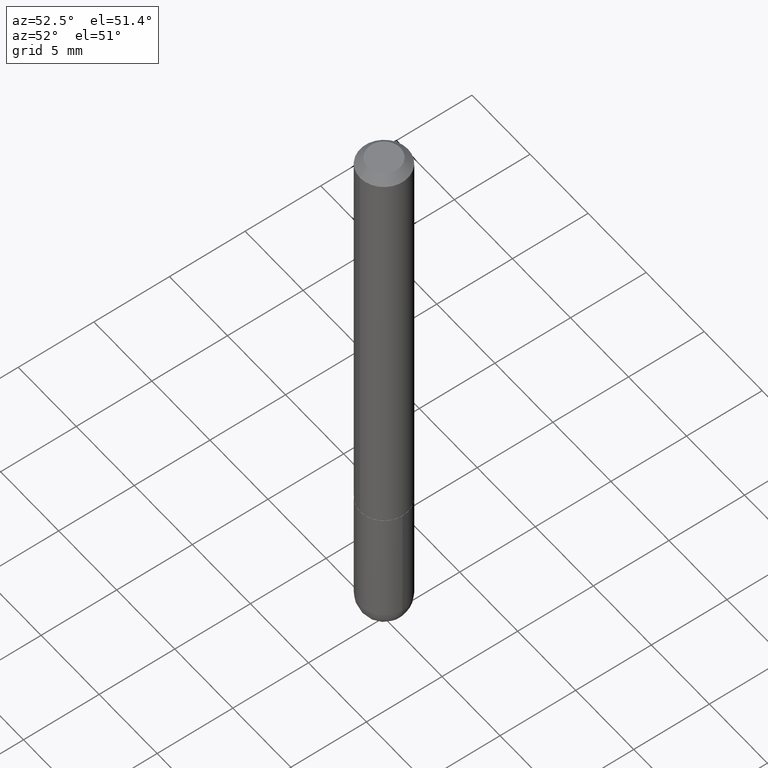
[diagram: clean part render]
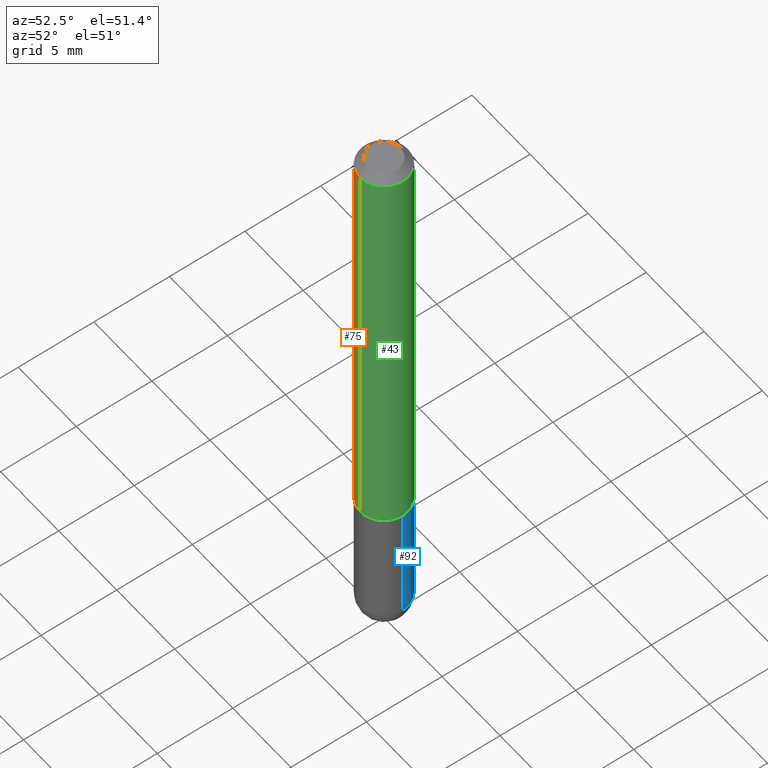
[diagram: same view with three faces highlighted in distinct colors, each labeled with its STEP entity id]
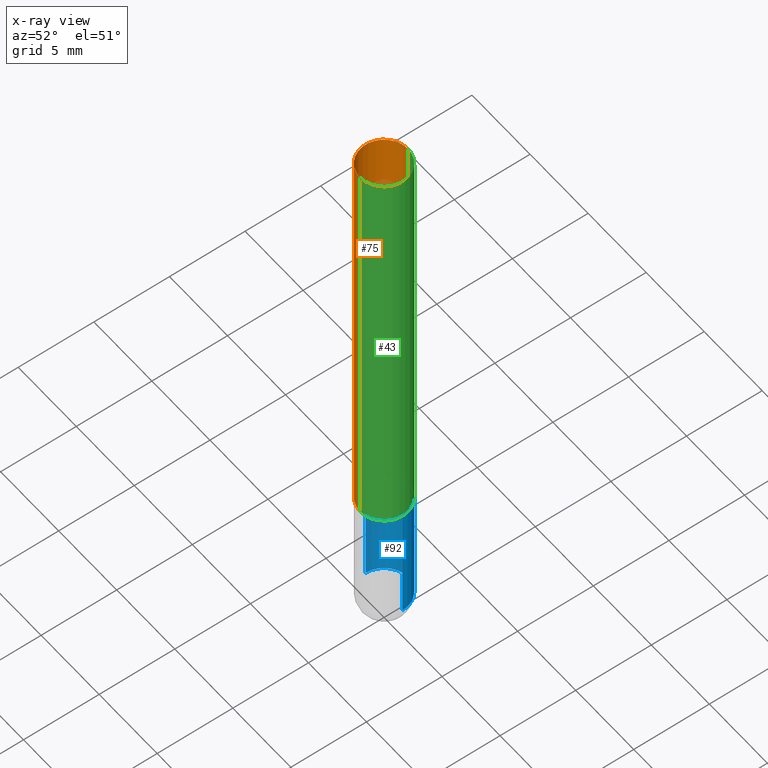
[diagram: x-ray of the same camera — body ghosted, the three highlighted faces saturated]
A machine part, auxiliary view with three faces highlighted in distinct colors.
The next image is the same camera in x-ray (body ghosted, the three faces saturated) — at least one of them is partly hidden behind the body in this view.
Their STEP definitions:

[orange] entity #75 — the highlighted cylindrical surface (edge-blend (fillet) strip) has radius 1.5875 mm, axis along (-0, 0, 1).
#18 = LINE ( 'NONE', #366, #71 ) ;
#21 = VERTEX_POINT ( 'NONE', #148 ) ;
#53 = ORIENTED_EDGE ( 'NONE', *, *, #346, .F. ) ;
#71 = VECTOR ( 'NONE', #202, 39.37007874015748143 ) ;
#72 = VERTEX_POINT ( 'NONE', #402 ) ;
#75 = ADVANCED_FACE ( 'NONE', ( #182 ), #214, .T. ) ;
#82 = CARTESIAN_POINT ( 'NONE',  ( -4.364351673553918666E-16, -0.06250000000000002776, 2.199706345751126750E-16 ) ) ;
#86 = DIRECTION ( 'NONE',  ( -6.982962677686265922E-15, -1.000000000000000000, 3.551402391763545142E-15 ) ) ;
#97 = ORIENTED_EDGE ( 'NONE', *, *, #301, .T. ) ;
#111 = CARTESIAN_POINT ( 'NONE',  ( 0.000000000000000000, 0.000000000000000000, 0.000000000000000000 ) ) ;
#116 = CARTESIAN_POINT ( 'NONE',  ( 4.851764847606321206E-31, -7.039060306403626060E-17, -0.02000000000000006981 ) ) ;
#117 = EDGE_CURVE ( 'NONE', #120, #21, #215, .T. ) ;
#120 = VERTEX_POINT ( 'NONE', #405 ) ;
#122 = CARTESIAN_POINT ( 'NONE',  ( 2.726691844354743262E-29, -3.955951892198824713E-15, -1.124000000000000110 ) ) ;
#136 = ORIENTED_EDGE ( 'NONE', *, *, #117, .T. ) ;
#148 = CARTESIAN_POINT ( 'NONE',  ( -4.287811248607198352E-16, -0.06250000000000001388, -0.01999999999999984776 ) ) ;
#167 = EDGE_LOOP ( 'NONE', ( #53, #97, #136, #226 ) ) ;
#170 = CIRCLE ( 'NONE', #316, 0.06250000000000012490 ) ;
#182 = FACE_OUTER_BOUND ( 'NONE', #167, .T. ) ;
#184 = DIRECTION ( 'NONE',  ( -6.982962677686265133E-15, -1.000000000000000000, 4.370956789862812472E-15 ) ) ;
#195 = EDGE_CURVE ( 'NONE', #300, #21, #407, .T. ) ;
#202 = DIRECTION ( 'NONE',  ( -2.425882423803152125E-29, 3.519530153201801222E-15, 1.000000000000000000 ) ) ;
#214 = CYLINDRICAL_SURFACE ( 'NONE', #338, 0.06250000000000002776 ) ;
#215 = LINE ( 'NONE', #82, #309 ) ;
#216 = AXIS2_PLACEMENT_3D ( 'NONE', #116, #377, #86 ) ;
#226 = ORIENTED_EDGE ( 'NONE', *, *, #195, .F. ) ;
#260 = DIRECTION ( 'NONE',  ( -2.425882423803152125E-29, 3.519530153201801222E-15, 1.000000000000000000 ) ) ;
#298 = CARTESIAN_POINT ( 'NONE',  ( 4.364351673553917187E-16, 0.06249999999999988204, -0.02000000000000029185 ) ) ;
#300 = VERTEX_POINT ( 'NONE', #298 ) ;
#301 = EDGE_CURVE ( 'NONE', #72, #120, #170, .T. ) ;
#309 = VECTOR ( 'NONE', #404, 39.37007874015748143 ) ;
#316 = AXIS2_PLACEMENT_3D ( 'NONE', #122, #260, #184 ) ;
#338 = AXIS2_PLACEMENT_3D ( 'NONE', #111, #378, #342 ) ;
#342 = DIRECTION ( 'NONE',  ( -6.982962677686266711E-15, -1.000000000000000000, 3.519530153201801222E-15 ) ) ;
#346 = EDGE_CURVE ( 'NONE', #72, #300, #18, .T. ) ;
#366 = CARTESIAN_POINT ( 'NONE',  ( 4.440892098500628134E-16, 0.06250000000000002776, -2.199706345751126750E-16 ) ) ;
#377 = DIRECTION ( 'NONE',  ( -2.425882423803152125E-29, 3.519530153201801222E-15, 1.000000000000000000 ) ) ;
#378 = DIRECTION ( 'NONE',  ( -2.425882423803152125E-29, 3.519530153201801222E-15, 1.000000000000000000 ) ) ;
#402 = CARTESIAN_POINT ( 'NONE',  ( 4.440892098500770129E-16, 0.06249999999999616279, -1.124000000000000332 ) ) ;
#404 = DIRECTION ( 'NONE',  ( -2.425882423803152125E-29, 3.519530153201801222E-15, 1.000000000000000000 ) ) ;
#405 = CARTESIAN_POINT ( 'NONE',  ( -4.364351673553651440E-16, -0.06250000000000406619, -1.123999999999999888 ) ) ;
#407 = CIRCLE ( 'NONE', #216, 0.06249999999999995143 ) ;

[blue] entity #92 — the highlighted cylindrical surface (edge-blend (fillet) strip) has radius 1.5875 mm, axis along (-0, 0, 1).
#2 = LINE ( 'NONE', #381, #290 ) ;
#11 = ORIENTED_EDGE ( 'NONE', *, *, #81, .T. ) ;
#15 = EDGE_LOOP ( 'NONE', ( #39, #11, #393, #261, #399 ) ) ;
#29 = CIRCLE ( 'NONE', #123, 0.06250000000000001388 ) ;
#37 = CARTESIAN_POINT ( 'NONE',  ( 0.06249999999999995143, -4.909895632748172453E-15, -1.437500000000000222 ) ) ;
#39 = ORIENTED_EDGE ( 'NONE', *, *, #390, .T. ) ;
#54 = CYLINDRICAL_SURFACE ( 'NONE', #394, 0.06249999999999997918 ) ;
#55 = LINE ( 'NONE', #218, #284 ) ;
#79 = VERTEX_POINT ( 'NONE', #283 ) ;
#81 = EDGE_CURVE ( 'NONE', #364, #337, #55, .T. ) ;
#91 = AXIS2_PLACEMENT_3D ( 'NONE', #249, #115, #375 ) ;
#92 = ADVANCED_FACE ( 'NONE', ( #151 ), #54, .T. ) ;
#100 = DIRECTION ( 'NONE',  ( 1.000000000000000000, -6.982962677686269077E-15, 0.000000000000000000 ) ) ;
#109 = DIRECTION ( 'NONE',  ( -2.445468806185136597E-29, 3.491481338843145583E-15, 1.000000000000000000 ) ) ;
#115 = DIRECTION ( 'NONE',  ( -2.445468806185136597E-29, 3.491481338843145583E-15, 1.000000000000000000 ) ) ;
#123 = AXIS2_PLACEMENT_3D ( 'NONE', #262, #159, #100 ) ;
#132 = CARTESIAN_POINT ( 'NONE',  ( -0.06249999999999995143, -4.029371255542718167E-15, -1.437500000000000222 ) ) ;
#139 = AXIS2_PLACEMENT_3D ( 'NONE', #275, #109, #395 ) ;
#146 = CARTESIAN_POINT ( 'NONE',  ( 0.000000000000000000, 0.000000000000000000, 0.000000000000000000 ) ) ;
#151 = FACE_OUTER_BOUND ( 'NONE', #15, .T. ) ;
#158 = EDGE_CURVE ( 'NONE', #228, #79, #178, .T. ) ;
#159 = DIRECTION ( 'NONE',  ( -2.445468806185136597E-29, 3.491481338843145583E-15, 1.000000000000000000 ) ) ;
#177 = DIRECTION ( 'NONE',  ( -2.445468806185136597E-29, 3.491481338843145583E-15, 1.000000000000000000 ) ) ;
#178 = CIRCLE ( 'NONE', #91, 0.06249999999999995143 ) ;
#218 = CARTESIAN_POINT ( 'NONE',  ( -0.06249999999999997918, 4.440892098500624683E-16, -3.074334431409315413E-30 ) ) ;
#228 = VERTEX_POINT ( 'NONE', #37 ) ;
#247 = DIRECTION ( 'NONE',  ( 1.000000000000000000, -6.982962677686267499E-15, 4.876176775795936353E-29 ) ) ;
#249 = CARTESIAN_POINT ( 'NONE',  ( 3.515361408891134418E-29, -5.019004424587023131E-15, -1.437500000000000222 ) ) ;
#259 = DIRECTION ( 'NONE',  ( -2.445468806185136877E-29, 3.491481338843145188E-15, 1.000000000000000000 ) ) ;
#261 = ORIENTED_EDGE ( 'NONE', *, *, #307, .F. ) ;
#262 = CARTESIAN_POINT ( 'NONE',  ( 2.751152406958278111E-29, -3.927916506198538435E-15, -1.124999999999999778 ) ) ;
#271 = CARTESIAN_POINT ( 'NONE',  ( -0.06250000000000001388, -4.029371255542718167E-15, -1.124999999999999778 ) ) ;
#275 = CARTESIAN_POINT ( 'NONE',  ( 3.515361408891134418E-29, -5.019004424587023131E-15, -1.437500000000000222 ) ) ;
#283 = CARTESIAN_POINT ( 'NONE',  ( 4.364351673554256397E-16, 0.06249999999999480971, -1.437500000000000444 ) ) ;
#284 = VECTOR ( 'NONE', #320, 39.37007874015748143 ) ;
#290 = VECTOR ( 'NONE', #259, 39.37007874015748143 ) ;
#307 = EDGE_CURVE ( 'NONE', #228, #335, #2, .T. ) ;
#319 = EDGE_CURVE ( 'NONE', #335, #337, #29, .T. ) ;
#320 = DIRECTION ( 'NONE',  ( -2.445468806185136877E-29, 3.491481338843145188E-15, 1.000000000000000000 ) ) ;
#335 = VERTEX_POINT ( 'NONE', #352 ) ;
#337 = VERTEX_POINT ( 'NONE', #271 ) ;
#352 = CARTESIAN_POINT ( 'NONE',  ( 0.06250000000000001388, -4.364351673553930105E-15, -1.124999999999999778 ) ) ;
#364 = VERTEX_POINT ( 'NONE', #132 ) ;
#375 = DIRECTION ( 'NONE',  ( 1.000000000000000000, -6.982962677686268288E-15, 0.000000000000000000 ) ) ;
#381 = CARTESIAN_POINT ( 'NONE',  ( 0.06249999999999997918, -4.364351673553915708E-16, 3.047610484872459170E-30 ) ) ;
#386 = CIRCLE ( 'NONE', #139, 0.06249999999999995143 ) ;
#390 = EDGE_CURVE ( 'NONE', #79, #364, #386, .T. ) ;
#393 = ORIENTED_EDGE ( 'NONE', *, *, #319, .F. ) ;
#394 = AXIS2_PLACEMENT_3D ( 'NONE', #146, #177, #247 ) ;
#395 = DIRECTION ( 'NONE',  ( 1.000000000000000000, -6.982962677686268288E-15, 0.000000000000000000 ) ) ;
#399 = ORIENTED_EDGE ( 'NONE', *, *, #158, .T. ) ;

[green] entity #43 — the highlighted cylindrical surface (edge-blend (fillet) strip) has radius 1.5875 mm, axis along (-0, 0, 1).
#13 = EDGE_LOOP ( 'NONE', ( #179, #47, #108, #268 ) ) ;
#18 = LINE ( 'NONE', #366, #71 ) ;
#21 = VERTEX_POINT ( 'NONE', #148 ) ;
#43 = ADVANCED_FACE ( 'NONE', ( #89 ), #317, .T. ) ;
#47 = ORIENTED_EDGE ( 'NONE', *, *, #346, .T. ) ;
#71 = VECTOR ( 'NONE', #202, 39.37007874015748143 ) ;
#72 = VERTEX_POINT ( 'NONE', #402 ) ;
#82 = CARTESIAN_POINT ( 'NONE',  ( -4.364351673553918666E-16, -0.06250000000000002776, 2.199706345751126750E-16 ) ) ;
#89 = FACE_OUTER_BOUND ( 'NONE', #13, .T. ) ;
#93 = DIRECTION ( 'NONE',  ( -2.425882423803152125E-29, 3.519530153201801222E-15, 1.000000000000000000 ) ) ;
#108 = ORIENTED_EDGE ( 'NONE', *, *, #293, .F. ) ;
#117 = EDGE_CURVE ( 'NONE', #120, #21, #215, .T. ) ;
#119 = AXIS2_PLACEMENT_3D ( 'NONE', #388, #164, #310 ) ;
#120 = VERTEX_POINT ( 'NONE', #405 ) ;
#148 = CARTESIAN_POINT ( 'NONE',  ( -4.287811248607198352E-16, -0.06250000000000001388, -0.01999999999999984776 ) ) ;
#152 = AXIS2_PLACEMENT_3D ( 'NONE', #351, #93, #324 ) ;
#164 = DIRECTION ( 'NONE',  ( -2.425882423803152125E-29, 3.519530153201801222E-15, 1.000000000000000000 ) ) ;
#179 = ORIENTED_EDGE ( 'NONE', *, *, #341, .T. ) ;
#202 = DIRECTION ( 'NONE',  ( -2.425882423803152125E-29, 3.519530153201801222E-15, 1.000000000000000000 ) ) ;
#215 = LINE ( 'NONE', #82, #309 ) ;
#245 = AXIS2_PLACEMENT_3D ( 'NONE', #347, #313, #348 ) ;
#268 = ORIENTED_EDGE ( 'NONE', *, *, #117, .F. ) ;
#293 = EDGE_CURVE ( 'NONE', #21, #300, #408, .T. ) ;
#298 = CARTESIAN_POINT ( 'NONE',  ( 4.364351673553917187E-16, 0.06249999999999988204, -0.02000000000000029185 ) ) ;
#300 = VERTEX_POINT ( 'NONE', #298 ) ;
#309 = VECTOR ( 'NONE', #404, 39.37007874015748143 ) ;
#310 = DIRECTION ( 'NONE',  ( -6.982962677686265133E-15, -1.000000000000000000, 4.370956789862812472E-15 ) ) ;
#313 = DIRECTION ( 'NONE',  ( -2.425882423803152125E-29, 3.519530153201801222E-15, 1.000000000000000000 ) ) ;
#317 = CYLINDRICAL_SURFACE ( 'NONE', #245, 0.06250000000000002776 ) ;
#324 = DIRECTION ( 'NONE',  ( -6.982962677686265922E-15, -1.000000000000000000, 3.551402391763545142E-15 ) ) ;
#326 = CIRCLE ( 'NONE', #119, 0.06250000000000012490 ) ;
#341 = EDGE_CURVE ( 'NONE', #120, #72, #326, .T. ) ;
#346 = EDGE_CURVE ( 'NONE', #72, #300, #18, .T. ) ;
#347 = CARTESIAN_POINT ( 'NONE',  ( 0.000000000000000000, 0.000000000000000000, 0.000000000000000000 ) ) ;
#348 = DIRECTION ( 'NONE',  ( -6.982962677686266711E-15, -1.000000000000000000, 3.519530153201801222E-15 ) ) ;
#351 = CARTESIAN_POINT ( 'NONE',  ( 4.851764847606321206E-31, -7.039060306403626060E-17, -0.02000000000000006981 ) ) ;
#366 = CARTESIAN_POINT ( 'NONE',  ( 4.440892098500628134E-16, 0.06250000000000002776, -2.199706345751126750E-16 ) ) ;
#388 = CARTESIAN_POINT ( 'NONE',  ( 2.726691844354743262E-29, -3.955951892198824713E-15, -1.124000000000000110 ) ) ;
#402 = CARTESIAN_POINT ( 'NONE',  ( 4.440892098500770129E-16, 0.06249999999999616279, -1.124000000000000332 ) ) ;
#404 = DIRECTION ( 'NONE',  ( -2.425882423803152125E-29, 3.519530153201801222E-15, 1.000000000000000000 ) ) ;
#405 = CARTESIAN_POINT ( 'NONE',  ( -4.364351673553651440E-16, -0.06250000000000406619, -1.123999999999999888 ) ) ;
#408 = CIRCLE ( 'NONE', #152, 0.06249999999999995143 ) ;